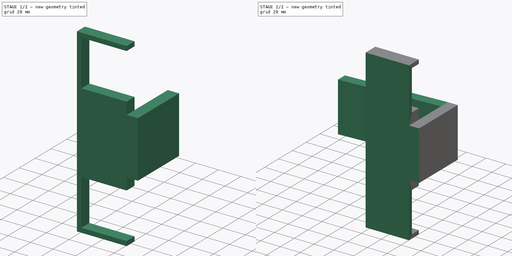
[diagram: build sequence overview — one tinted view per stage of 2, left to right]
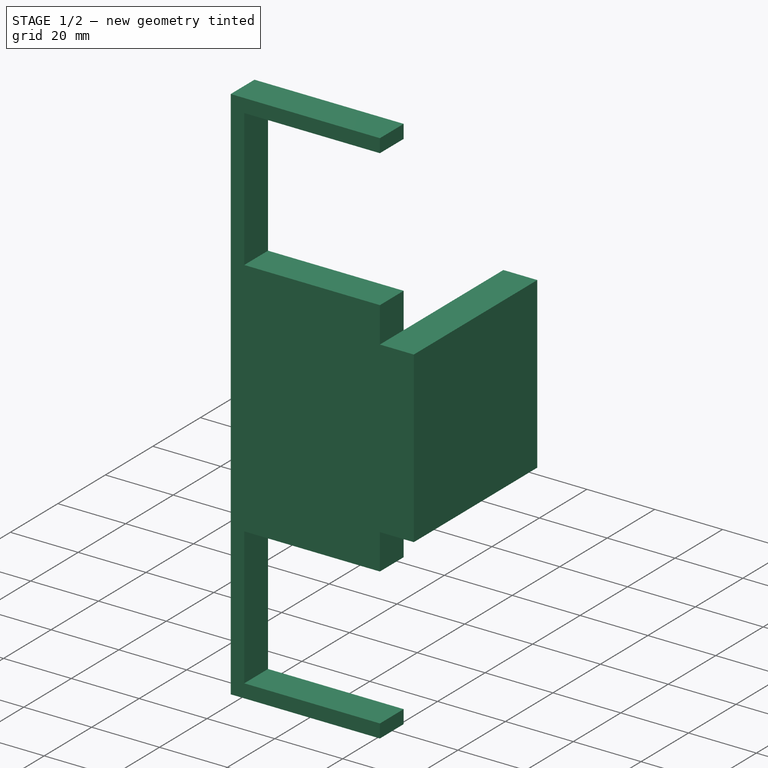
[diagram: stage 1 of 2 — iso view after this stage's code; geometry added in this stage tinted green]
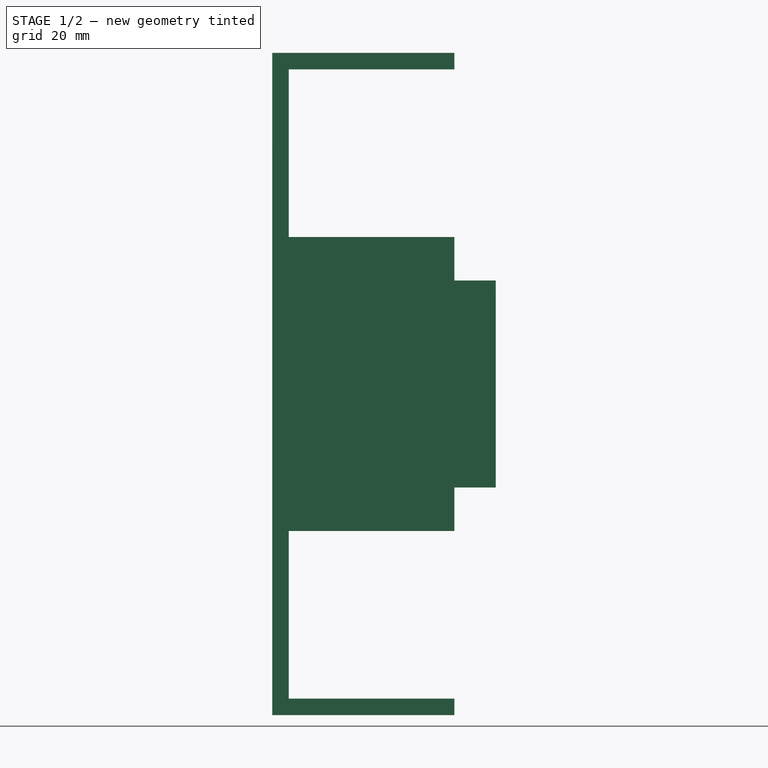
[diagram: stage 1 of 2 — front view after this stage's code; geometry added in this stage tinted green]
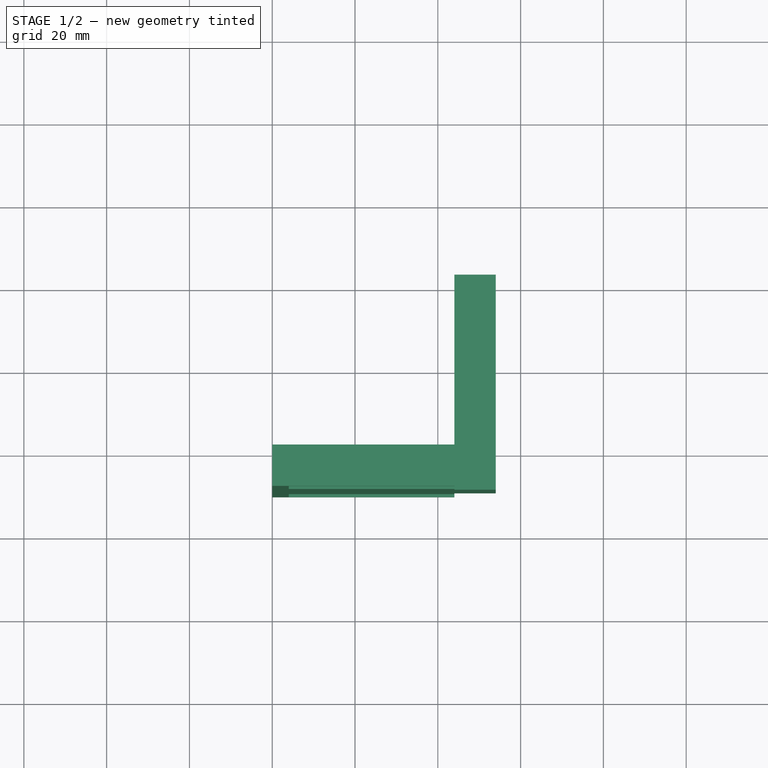
[diagram: stage 1 of 2 — top view after this stage's code; geometry added in this stage tinted green]
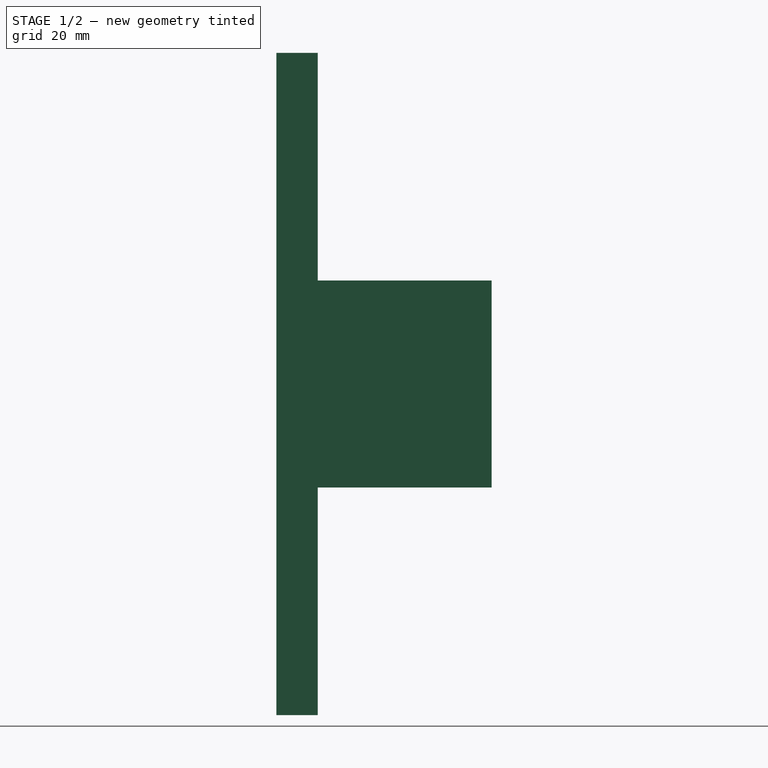
[diagram: stage 1 of 2 — right view after this stage's code; geometry added in this stage tinted green]
FCSTD DOCUMENT  (FreeCAD 2023.521R14555 (Git shallow))
Label: PSU_mount
License: All rights reserved
LicenseURL: https://en.wikipedia.org/wiki/All_rights_reserved
objects: Sketcher::SketchObject×4, PartDesign::Pad×4, PartDesign::Body×1
note: 21 computed .brp shape members not serialized (recipe doc carries the construction recipe); baked Part::Feature solids carry a one-line shape summary decoded from their .brp

FEATURE [Sketcher::SketchObject] Sketch
  ArcFitTolerance = 1e-06
  AttachmentSupport = -> [XZ_Plane]
  ExternalBSplineMaxDegree = 5
  ExternalBSplineTolerance = 0.0001
  FixShape = 1
  FullyConstrained = true
  InternalTolerance = 1e-06
  InvalidShape = false
  MakeInternals = false
  MapMode = 5
  Placement = pos=(0,0,0) rot=(1,0,0;1.5708rad)
  Support = -> [XZ_Plane]
  TreeRank = 11
  ValidateShape = false
  expr: Constraints[26] = .Constraints.wid
  expr: Constraints[28] = .Constraints.wid
  sketch-geometry (13):
    g0: LineSegment StartX=44 StartY=76 StartZ=0 EndX=4 EndY=76 EndZ=0
    g1: LineSegment StartX=4 StartY=35.5 StartZ=0 EndX=44 EndY=35.5 EndZ=0
    g2: LineSegment StartX=44 StartY=-35.5 StartZ=0 EndX=4 EndY=-35.5 EndZ=0
    g3: LineSegment StartX=4 StartY=-76 StartZ=0 EndX=44 EndY=-76 EndZ=0
    g4: LineSegment StartX=0 StartY=-80 StartZ=0 EndX=0 EndY=80 EndZ=0
    g5: LineSegment StartX=0 StartY=80 StartZ=0 EndX=44 EndY=80 EndZ=0
    g6: LineSegment StartX=44 StartY=-80 StartZ=0 EndX=0 EndY=-80 EndZ=0
    g7: GeomPoint [constr] X=22 Y=0 Z=0
    g8: LineSegment StartX=44 StartY=-76 StartZ=0 EndX=44 EndY=-80 EndZ=0
    g9: LineSegment StartX=44 StartY=-35.5 StartZ=0 EndX=44 EndY=35.5 EndZ=0
    g10: LineSegment StartX=44 StartY=76 StartZ=0 EndX=44 EndY=80 EndZ=0
    g11: LineSegment StartX=4 StartY=76 StartZ=0 EndX=4 EndY=35.5 EndZ=0
    g12: LineSegment StartX=4 StartY=-35.5 StartZ=0 EndX=4 EndY=-76 EndZ=0
  constraints (36):
    c: Horizontal(g0)
    c: Horizontal(g1)
    c: Horizontal(g2)
    c: Horizontal(g3)
    c: Coincident(g4,g5)
    c: Coincident(g6,g4)
    c: Horizontal(g5)
    c: Horizontal(g6)
    c: Vertical(g4)
    c: Symmetric(g5,g4,g7)
    c: PointOnObject(g7,g-1)
    c: PointOnObject(g-1,g4)
    c: Coincident(g8,g3)
    c: Coincident(g8,g6)
    c: Coincident(g9,g1)
    c: Coincident(g10,g0)
    c: Coincident(g10,g5)
    c: Coincident(g2,g9)
    c: Vertical(g9)
    c: Vertical(g8)
    c: Vertical(g10)
    c: Vertical(g1,g0)
    c: Vertical(g3,g2)
    c: DistanceX(g2,g2) = 40
    c: DistanceY(g3,g2) = 40.5
    c: Symmetric(g2,g1,g-1)
    c: DistanceX(g4,g3) = 4
    c: DistanceY(g4,g3) = 4  'wid'
    c: DistanceY(g0,g4) = 4
    c: Coincident(g11,g0)
    c: Coincident(g11,g1)
    c: Vertical(g11)
    c: Coincident(g12,g2)
    c: Coincident(g12,g3)
    c: Vertical(g12)
    c: DistanceY(g4,g4) = 160
FEATURE [PartDesign::Pad] Pad
  AddSubType = 0
  AlongSketchNormal = false
  AutoTaperInnerAngle = true
  CheckUpToFaceLimits = true
  ClaimChildren = false
  Direction = (0,-1,2e-16)
  Fit = 0
  FitJoin = 0
  FixShape = 1
  InnerFit = 0
  InnerFitJoin = 0
  InvalidShape = false
  Length = 10
  Length2 = 10
  Linearize = true
  NewSolid = false
  Profile = -> Sketch
  ReferenceAxis = -> Sketch [N_Axis]
  Refine = true
  Suppress = false
  TaperInnerAngle = 0
  TaperInnerAngleRev = 0
  TreeRank = 12
  Type = 0
  ValidateShape = true
  _ProfileBasedVersion = 1
FEATURE [Sketcher::SketchObject] Sketch001
  ArcFitTolerance = 1e-06
  AttachmentSupport = -> [Pad]
  ExternalBSplineMaxDegree = 5
  ExternalBSplineTolerance = 0.0001
  ExternalGeometry = -> [Pad]
  FixShape = 1
  FullyConstrained = true
  InternalTolerance = 1e-06
  InvalidShape = false
  MakeInternals = false
  MapMode = 5
  Placement = pos=(0,-10,2.2e-15) rot=(1,0,0;1.5708rad)
  Support = -> [Pad]
  TreeRank = 13
  ValidateShape = false
  sketch-geometry (4):
    g0: LineSegment StartX=44 StartY=25 StartZ=0 EndX=54 EndY=25 EndZ=0
    g1: LineSegment StartX=54 StartY=25 StartZ=0 EndX=54 EndY=-25 EndZ=0
    g2: LineSegment StartX=54 StartY=-25 StartZ=0 EndX=44 EndY=-25 EndZ=0
    g3: LineSegment StartX=44 StartY=25 StartZ=0 EndX=44 EndY=-25 EndZ=0
  constraints (11):
    c: Horizontal(g0)
    c: Coincident(g1,g2)
    c: Coincident(g0,g1)
    c: Horizontal(g2)
    c: Vertical(g1)
    c: DistanceX(g2,g2) = 10
    c: Vertical(g2,g-3)
    c: Symmetric(g2,g0,g-1)
    c: Coincident(g3,g0)
    c: Coincident(g3,g2)
    c: DistanceY(g1,g1) = 50
FEATURE [PartDesign::Pad] Pad001
  AddSubType = 0
  AlongSketchNormal = false
  AutoTaperInnerAngle = true
  BaseFeature = -> Pad
  CheckUpToFaceLimits = true
  ClaimChildren = false
  Direction = (0,-1,2e-16)
  Fit = 0
  FitJoin = 0
  FixShape = 1
  InnerFit = 0
  InnerFitJoin = 0
  InvalidShape = false
  Length = 52
  Length2 = 10
  Linearize = true
  NewSolid = false
  Profile = -> Sketch001
  ReferenceAxis = -> Sketch001 [N_Axis]
  Refine = true
  Reversed = true
  Suppress = false
  TaperInnerAngle = 0
  TaperInnerAngleRev = 0
  TreeRank = 14
  Type = 0
  ValidateShape = true
  _ProfileBasedVersion = 1
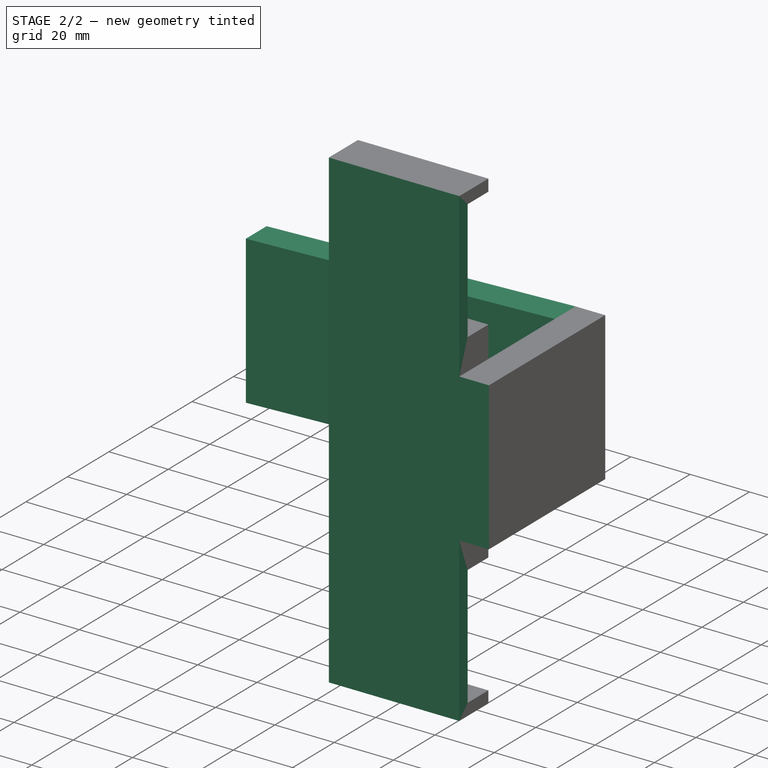
[diagram: stage 2 of 2 — iso view after this stage's code; geometry added in this stage tinted green]
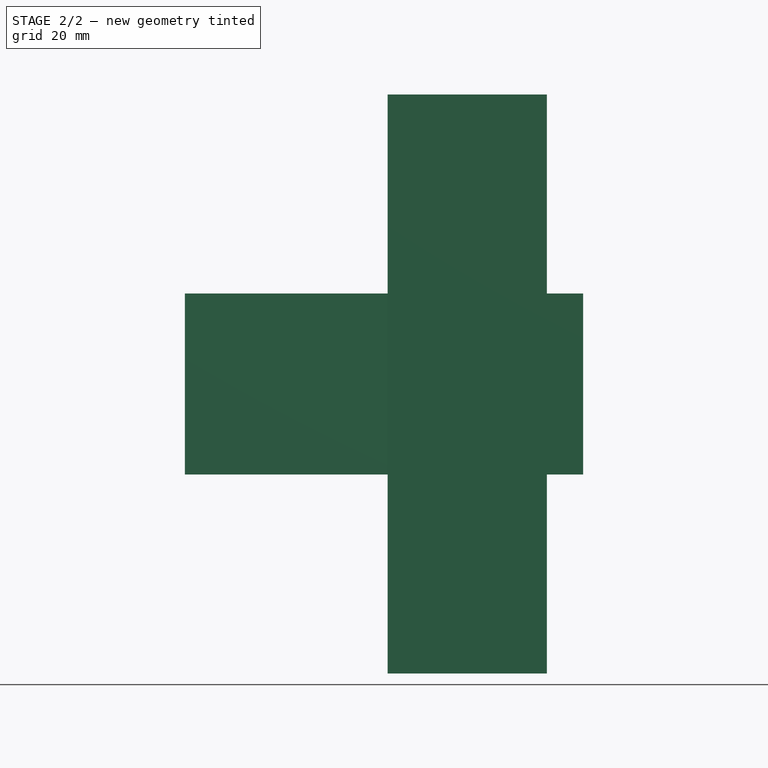
[diagram: stage 2 of 2 — front view after this stage's code; geometry added in this stage tinted green]
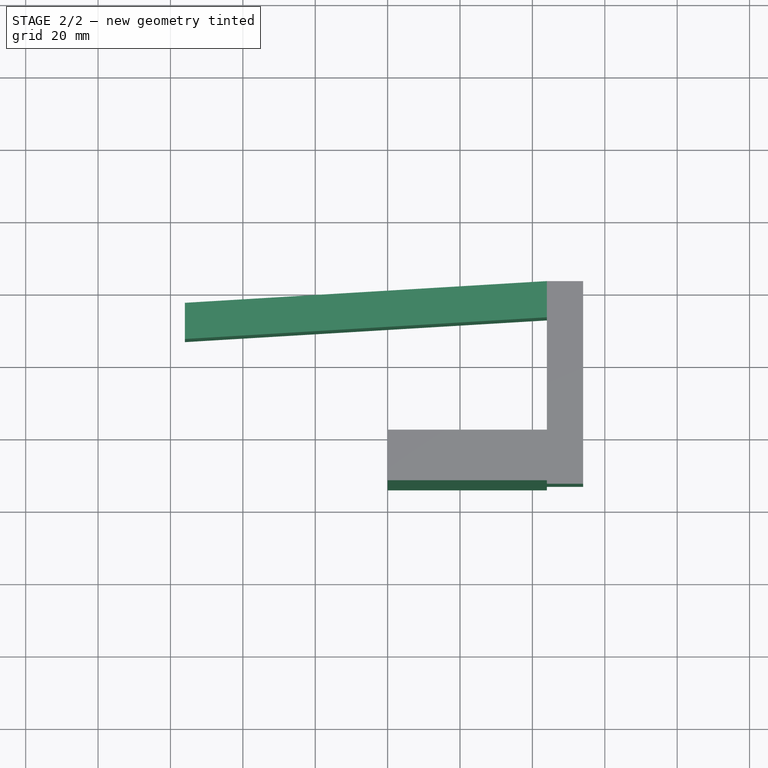
[diagram: stage 2 of 2 — top view after this stage's code; geometry added in this stage tinted green]
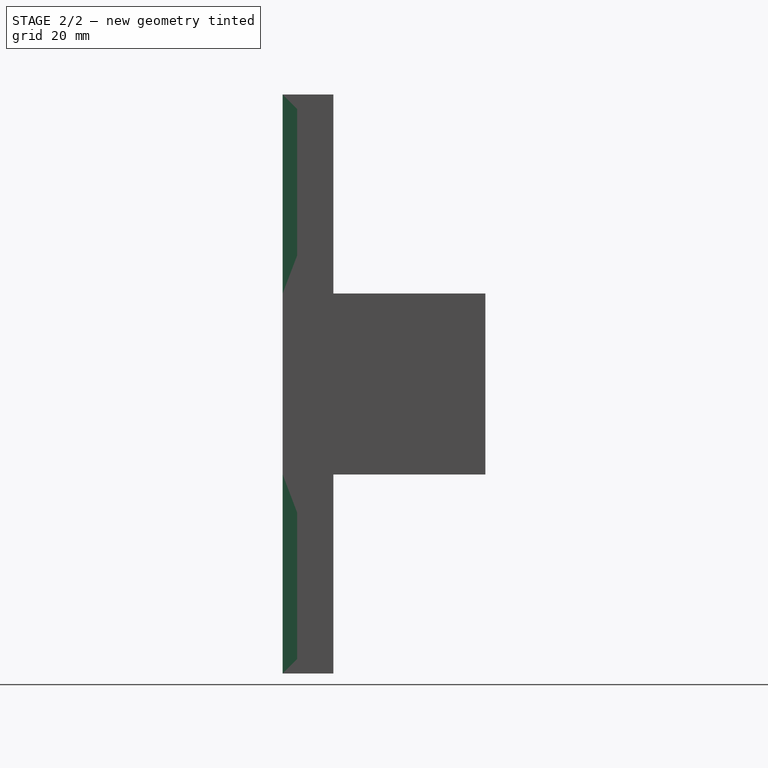
[diagram: stage 2 of 2 — right view after this stage's code; geometry added in this stage tinted green]
FEATURE [Sketcher::SketchObject] Sketch002
  ArcFitTolerance = 1e-06
  AttachmentSupport = -> [Pad001]
  ExternalBSplineMaxDegree = 5
  ExternalBSplineTolerance = 0.0001
  ExternalGeometry = -> [Pad001]
  FixShape = 1
  FullyConstrained = true
  InternalTolerance = 1e-06
  InvalidShape = false
  MakeInternals = false
  MapMode = 5
  Placement = pos=(0,-10,2.2e-15) rot=(1,0,0;1.5708rad)
  Support = -> [Pad001]
  TreeRank = 15
  ValidateShape = false
  sketch-geometry (2):
    g0: LineSegment StartX=44 StartY=80 StartZ=0 EndX=44 EndY=25 EndZ=0
    g1: LineSegment StartX=44 StartY=-25 StartZ=0 EndX=44 EndY=-80 EndZ=0
  constraints (4):
    c: Coincident(g0,g-3)
    c: Coincident(g1,g-5)
    c: Coincident(g1,g-8)
    c: Coincident(g0,g-6)
FEATURE [PartDesign::Pad] Pad002
  AddSubType = 0
  AlongSketchNormal = false
  AutoTaperInnerAngle = true
  BaseFeature = -> Pad001
  CheckUpToFaceLimits = true
  ClaimChildren = false
  Direction = (0,-1,2e-16)
  Fit = 0
  FitJoin = 0
  FixShape = 1
  InnerFit = 0
  InnerFitJoin = 0
  InvalidShape = false
  Length = 4
  Length2 = 10
  Linearize = true
  NewSolid = false
  Profile = -> Sketch002
  ReferenceAxis = -> Sketch002 [N_Axis]
  Refine = true
  Suppress = false
  TaperInnerAngle = 0
  TaperInnerAngleRev = 0
  TreeRank = 16
  Type = 0
  ValidateShape = true
  _ProfileBasedVersion = 1
FEATURE [Sketcher::SketchObject] Sketch003
  ArcFitTolerance = 1e-06
  AttachmentSupport = -> [Pad002]
  ExternalBSplineMaxDegree = 5
  ExternalBSplineTolerance = 0.0001
  ExternalGeometry = -> [Pad002]
  FixShape = 1
  FullyConstrained = true
  InternalTolerance = 1e-06
  InvalidShape = false
  MakeInternals = false
  MapMode = 5
  Placement = pos=(-1.5e-15,5.2e-15,25) rot=(0,0,1;0rad)
  Support = -> [Pad002]
  TreeRank = 17
  ValidateShape = false
  sketch-geometry (4):
    g0: LineSegment StartX=44 StartY=42 StartZ=0 EndX=-56 EndY=36 EndZ=0
    g1: LineSegment StartX=-56 StartY=36 StartZ=0 EndX=-56 EndY=26 EndZ=0
    g2: LineSegment StartX=-56 StartY=26 StartZ=0 EndX=44 EndY=32 EndZ=0
    g3: LineSegment StartX=44 StartY=42 StartZ=0 EndX=44 EndY=32 EndZ=0
  constraints (11):
    c: Coincident(g1,g0)
    c: Vertical(g1)
    c: Coincident(g2,g1)
    c: Vertical(g0,g2)
    c: Coincident(g0,g-3)
    c: Parallel(g2,g0)
    c: Coincident(g3,g0)
    c: Coincident(g3,g2)
    c: DistanceY(g-3,g2) = 32
    c: DistanceX(g0,g0) = 100
    c: DistanceY(g0,g0) = 6
FEATURE [PartDesign::Pad] Pad003
  AddSubType = 0
  AlongSketchNormal = false
  AutoTaperInnerAngle = true
  BaseFeature = -> Pad002
  CheckUpToFaceLimits = true
  ClaimChildren = false
  Direction = (-1e-16,2e-16,1)
  Fit = 0
  FitJoin = 0
  FixShape = 1
  InnerFit = 0
  InnerFitJoin = 0
  InvalidShape = false
  Length = 10
  Length2 = 10
  Linearize = true
  NewSolid = false
  Profile = -> Sketch003
  ReferenceAxis = -> Sketch003 [N_Axis]
  Refine = true
  Suppress = false
  TaperInnerAngle = 0
  TaperInnerAngleRev = 0
  TreeRank = 18
  Type = 3
  UpToFace = -> Pad002 [Face15]
  ValidateShape = true
  _ProfileBasedVersion = 1
FEATURE [PartDesign::Body] Body
  AutoGroupSolids = false
  ClaimAllChildren = false
  ExportMode = 0
  FixShape = 1
  Group = -> [Sketch,Pad,Sketch001,Pad001,Sketch002,Pad002,Sketch003,Pad003]
  InvalidShape = false
  Origin = -> Origin
  Tip = -> Pad003
  TreeRank = 10
  ValidateShape = false
  _ExportChildren = -> [Pad,Pad001,Pad002,Pad003]
  _GroupVersion = 1
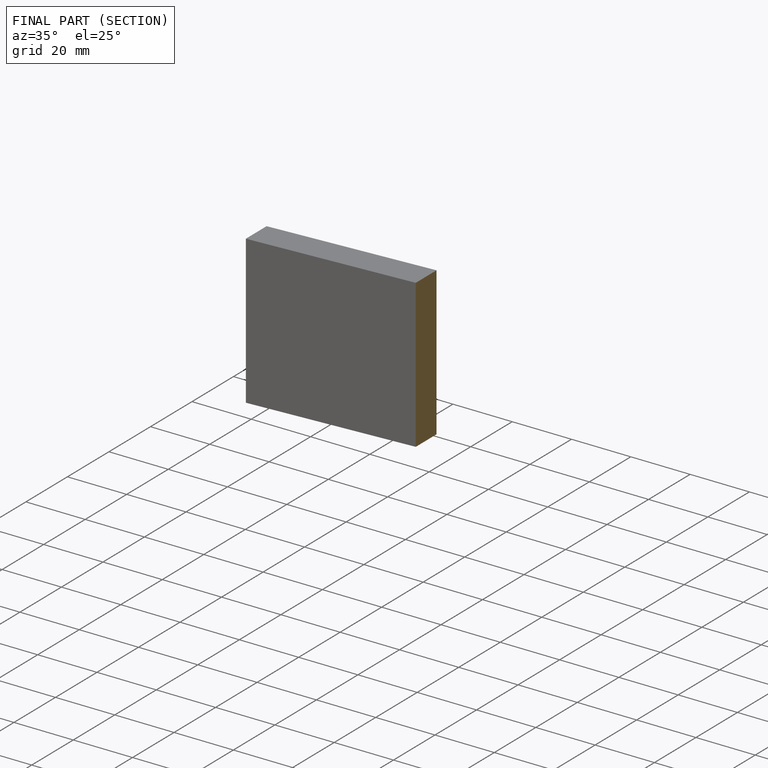
[diagram: finished part — half-section view (interior)]
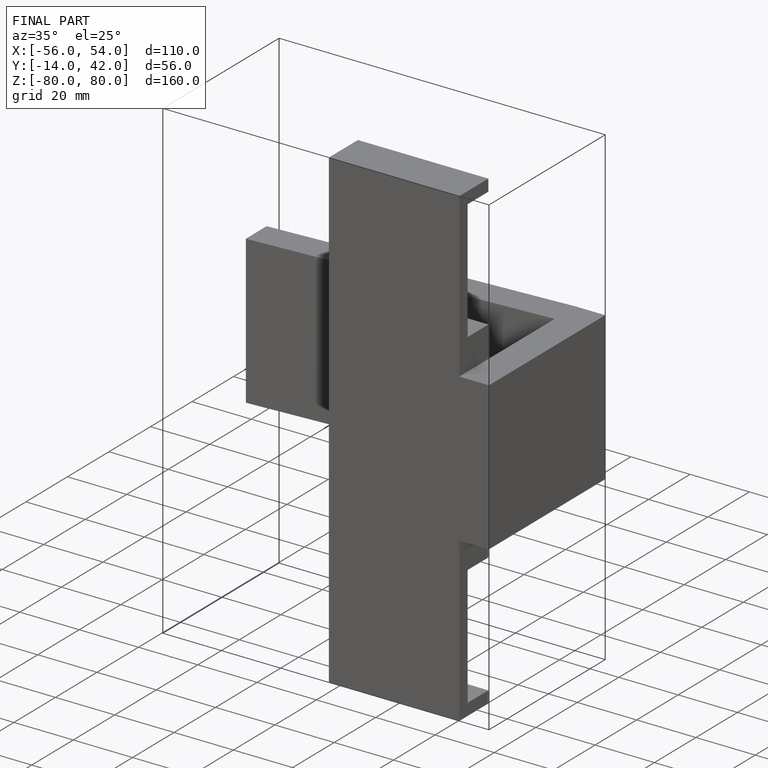
[diagram: finished part — iso view with bounding-box wireframe]
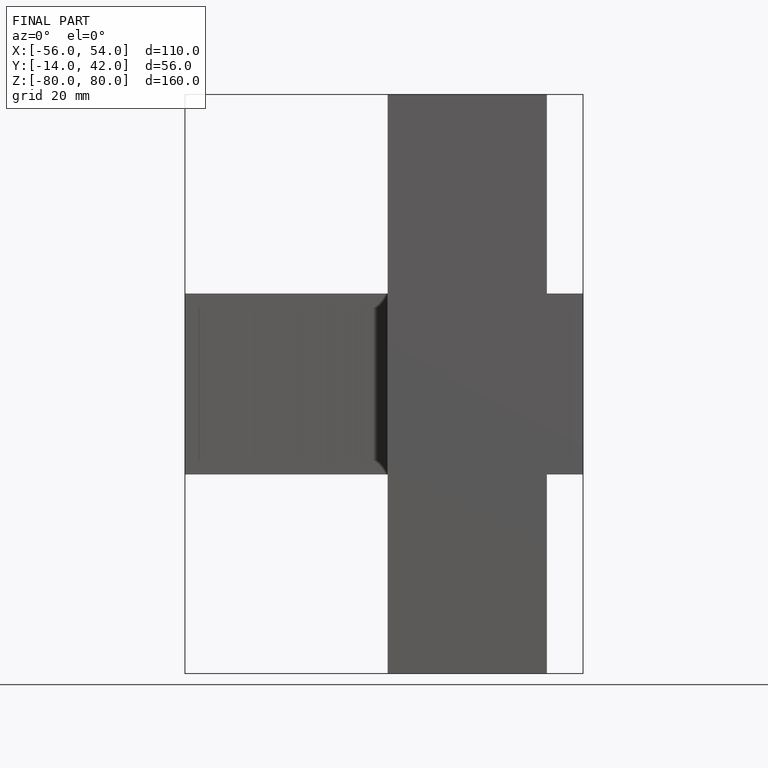
[diagram: finished part — front view with bounding-box wireframe]
